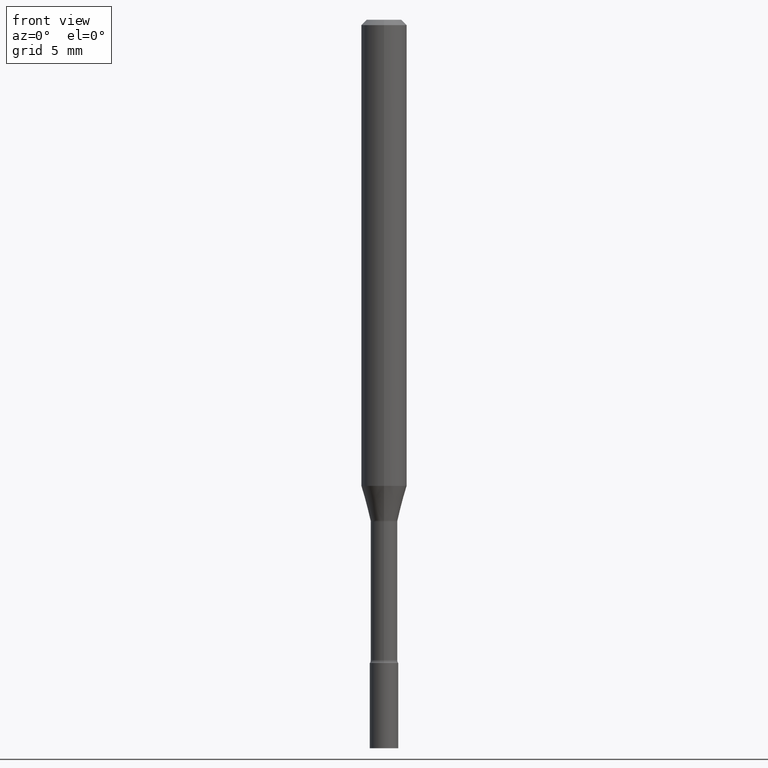
[diagram: clean part render]
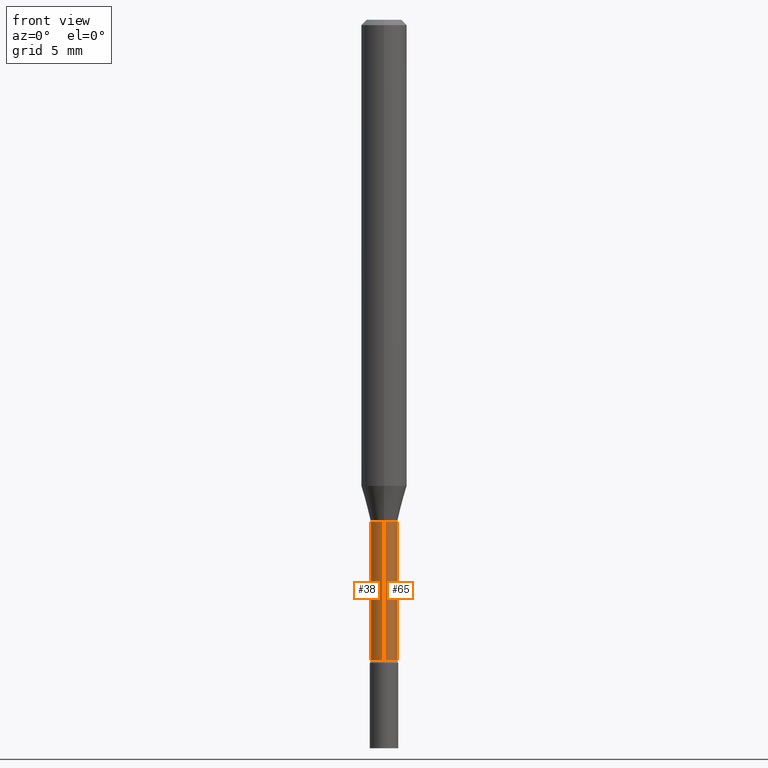
[diagram: same view with one multi-face feature highlighted, each face labeled with its STEP entity id]
A machine part, front view. The highlighted faces form ONE feature: a constant-radius fillet chain: 2 tangent blend faces with common blend radius 0.9309 mm. The faces share edges in the B-rep.
Their STEP definitions:
[1] entity #65 (Cylinder):
#12 = EDGE_CURVE ( 'NONE', #498, #195, #132, .T. ) ;
#48 = ORIENTED_EDGE ( 'NONE', *, *, #280, .T. ) ;
#50 = AXIS2_PLACEMENT_3D ( 'NONE', #260, #428, #208 ) ;
#65 = ADVANCED_FACE ( 'NONE', ( #438 ), #461, .T. ) ;
#68 = VERTEX_POINT ( 'NONE', #344 ) ;
#74 = DIRECTION ( 'NONE',  ( -6.982962677686265922E-15, -1.000000000000000000, 0.000000000000000000 ) ) ;
#121 = CARTESIAN_POINT ( 'NONE',  ( -2.559255821372017909E-16, -0.03665000000000002284, 1.279636653835229157E-16 ) ) ;
#127 = DIRECTION ( 'NONE',  ( -2.445452147771860256E-29, 3.491505194639094841E-15, 1.000000000000000000 ) ) ;
#132 = CIRCLE ( 'NONE', #396, 0.03665000000000003672 ) ;
#160 = LINE ( 'NONE', #121, #289 ) ;
#178 = DIRECTION ( 'NONE',  ( -2.445452147771860256E-29, 3.491505194639095236E-15, 1.000000000000000000 ) ) ;
#195 = VERTEX_POINT ( 'NONE', #274 ) ;
#208 = DIRECTION ( 'NONE',  ( -6.982962677686265133E-15, -1.000000000000000000, 0.000000000000000000 ) ) ;
#219 = EDGE_CURVE ( 'NONE', #312, #68, #278, .T. ) ;
#242 = EDGE_CURVE ( 'NONE', #498, #312, #160, .T. ) ;
#243 = CARTESIAN_POINT ( 'NONE',  ( -2.559255821371679685E-16, -0.03665000000000481761, -1.377974787463811079 ) ) ;
#247 = ORIENTED_EDGE ( 'NONE', *, *, #12, .T. ) ;
#252 = CARTESIAN_POINT ( 'NONE',  ( 0.000000000000000000, 0.000000000000000000, 0.000000000000000000 ) ) ;
#260 = CARTESIAN_POINT ( 'NONE',  ( 3.369771403578849424E-29, -4.811206128511599572E-15, -1.377974787463811079 ) ) ;
#274 = CARTESIAN_POINT ( 'NONE',  ( 2.687627898013010678E-16, 0.03664999999999390273, -1.757939137763241400 ) ) ;
#278 = CIRCLE ( 'NONE', #50, 0.03665000000000000202 ) ;
#279 = ORIENTED_EDGE ( 'NONE', *, *, #219, .F. ) ;
#280 = EDGE_CURVE ( 'NONE', #195, #68, #373, .T. ) ;
#289 = VECTOR ( 'NONE', #447, 39.37007874015748143 ) ;
#293 = CARTESIAN_POINT ( 'NONE',  ( 2.604139126560768311E-16, 0.03665000000000002284, -1.279636653835229157E-16 ) ) ;
#312 = VERTEX_POINT ( 'NONE', #243 ) ;
#321 = AXIS2_PLACEMENT_3D ( 'NONE', #252, #178, #338 ) ;
#329 = EDGE_LOOP ( 'NONE', ( #247, #48, #279, #372 ) ) ;
#335 = VECTOR ( 'NONE', #127, 39.37007874015748143 ) ;
#338 = DIRECTION ( 'NONE',  ( -6.982962677686265133E-15, -1.000000000000000000, 3.491505194639095236E-15 ) ) ;
#344 = CARTESIAN_POINT ( 'NONE',  ( 2.604139126561198240E-16, 0.03664999999999519337, -1.377974787463811079 ) ) ;
#372 = ORIENTED_EDGE ( 'NONE', *, *, #242, .F. ) ;
#373 = LINE ( 'NONE', #293, #335 ) ;
#396 = AXIS2_PLACEMENT_3D ( 'NONE', #511, #429, #74 ) ;
#428 = DIRECTION ( 'NONE',  ( -2.445452147771860256E-29, 3.491505194639095236E-15, 1.000000000000000000 ) ) ;
#429 = DIRECTION ( 'NONE',  ( -2.445452147771860256E-29, 3.491505194639095236E-15, 1.000000000000000000 ) ) ;
#438 = FACE_OUTER_BOUND ( 'NONE', #329, .T. ) ;
#447 = DIRECTION ( 'NONE',  ( -2.445452147771860256E-29, 3.491505194639094841E-15, 1.000000000000000000 ) ) ;
#461 = CYLINDRICAL_SURFACE ( 'NONE', #321, 0.03665000000000002284 ) ;
#498 = VERTEX_POINT ( 'NONE', #499 ) ;
#499 = CARTESIAN_POINT ( 'NONE',  ( -2.559255821371589459E-16, -0.03665000000000617764, -1.757939137763241400 ) ) ;
#511 = CARTESIAN_POINT ( 'NONE',  ( 4.298956040095331053E-29, -6.137853631359729833E-15, -1.757939137763241400 ) ) ;
[2] entity #38 (Cylinder):
#1 = ORIENTED_EDGE ( 'NONE', *, *, #280, .F. ) ;
#7 = EDGE_CURVE ( 'NONE', #195, #498, #408, .T. ) ;
#19 = CARTESIAN_POINT ( 'NONE',  ( 3.369771403578849424E-29, -4.811206128511599572E-15, -1.377974787463811079 ) ) ;
#31 = FACE_OUTER_BOUND ( 'NONE', #507, .T. ) ;
#38 = ADVANCED_FACE ( 'NONE', ( #31 ), #55, .T. ) ;
#55 = CYLINDRICAL_SURFACE ( 'NONE', #75, 0.03665000000000002284 ) ;
#68 = VERTEX_POINT ( 'NONE', #344 ) ;
#75 = AXIS2_PLACEMENT_3D ( 'NONE', #224, #146, #139 ) ;
#121 = CARTESIAN_POINT ( 'NONE',  ( -2.559255821372017909E-16, -0.03665000000000002284, 1.279636653835229157E-16 ) ) ;
#127 = DIRECTION ( 'NONE',  ( -2.445452147771860256E-29, 3.491505194639094841E-15, 1.000000000000000000 ) ) ;
#139 = DIRECTION ( 'NONE',  ( -6.982962677686265133E-15, -1.000000000000000000, 3.491505194639095236E-15 ) ) ;
#146 = DIRECTION ( 'NONE',  ( -2.445452147771860256E-29, 3.491505194639095236E-15, 1.000000000000000000 ) ) ;
#160 = LINE ( 'NONE', #121, #289 ) ;
#171 = ORIENTED_EDGE ( 'NONE', *, *, #242, .T. ) ;
#188 = AXIS2_PLACEMENT_3D ( 'NONE', #19, #463, #251 ) ;
#195 = VERTEX_POINT ( 'NONE', #274 ) ;
#224 = CARTESIAN_POINT ( 'NONE',  ( 0.000000000000000000, 0.000000000000000000, 0.000000000000000000 ) ) ;
#242 = EDGE_CURVE ( 'NONE', #498, #312, #160, .T. ) ;
#243 = CARTESIAN_POINT ( 'NONE',  ( -2.559255821371679685E-16, -0.03665000000000481761, -1.377974787463811079 ) ) ;
#251 = DIRECTION ( 'NONE',  ( -6.982962677686265133E-15, -1.000000000000000000, 0.000000000000000000 ) ) ;
#265 = ORIENTED_EDGE ( 'NONE', *, *, #7, .T. ) ;
#274 = CARTESIAN_POINT ( 'NONE',  ( 2.687627898013010678E-16, 0.03664999999999390273, -1.757939137763241400 ) ) ;
#280 = EDGE_CURVE ( 'NONE', #195, #68, #373, .T. ) ;
#289 = VECTOR ( 'NONE', #447, 39.37007874015748143 ) ;
#293 = CARTESIAN_POINT ( 'NONE',  ( 2.604139126560768311E-16, 0.03665000000000002284, -1.279636653835229157E-16 ) ) ;
#310 = DIRECTION ( 'NONE',  ( -6.982962677686265922E-15, -1.000000000000000000, 0.000000000000000000 ) ) ;
#312 = VERTEX_POINT ( 'NONE', #243 ) ;
#325 = ORIENTED_EDGE ( 'NONE', *, *, #343, .F. ) ;
#335 = VECTOR ( 'NONE', #127, 39.37007874015748143 ) ;
#343 = EDGE_CURVE ( 'NONE', #68, #312, #513, .T. ) ;
#344 = CARTESIAN_POINT ( 'NONE',  ( 2.604139126561198240E-16, 0.03664999999999519337, -1.377974787463811079 ) ) ;
#347 = CARTESIAN_POINT ( 'NONE',  ( 4.298956040095331053E-29, -6.137853631359729833E-15, -1.757939137763241400 ) ) ;
#373 = LINE ( 'NONE', #293, #335 ) ;
#383 = DIRECTION ( 'NONE',  ( -2.445452147771860256E-29, 3.491505194639095236E-15, 1.000000000000000000 ) ) ;
#408 = CIRCLE ( 'NONE', #449, 0.03665000000000003672 ) ;
#447 = DIRECTION ( 'NONE',  ( -2.445452147771860256E-29, 3.491505194639094841E-15, 1.000000000000000000 ) ) ;
#449 = AXIS2_PLACEMENT_3D ( 'NONE', #347, #383, #310 ) ;
#463 = DIRECTION ( 'NONE',  ( -2.445452147771860256E-29, 3.491505194639095236E-15, 1.000000000000000000 ) ) ;
#498 = VERTEX_POINT ( 'NONE', #499 ) ;
#499 = CARTESIAN_POINT ( 'NONE',  ( -2.559255821371589459E-16, -0.03665000000000617764, -1.757939137763241400 ) ) ;
#507 = EDGE_LOOP ( 'NONE', ( #1, #265, #171, #325 ) ) ;
#513 = CIRCLE ( 'NONE', #188, 0.03665000000000000202 ) ;